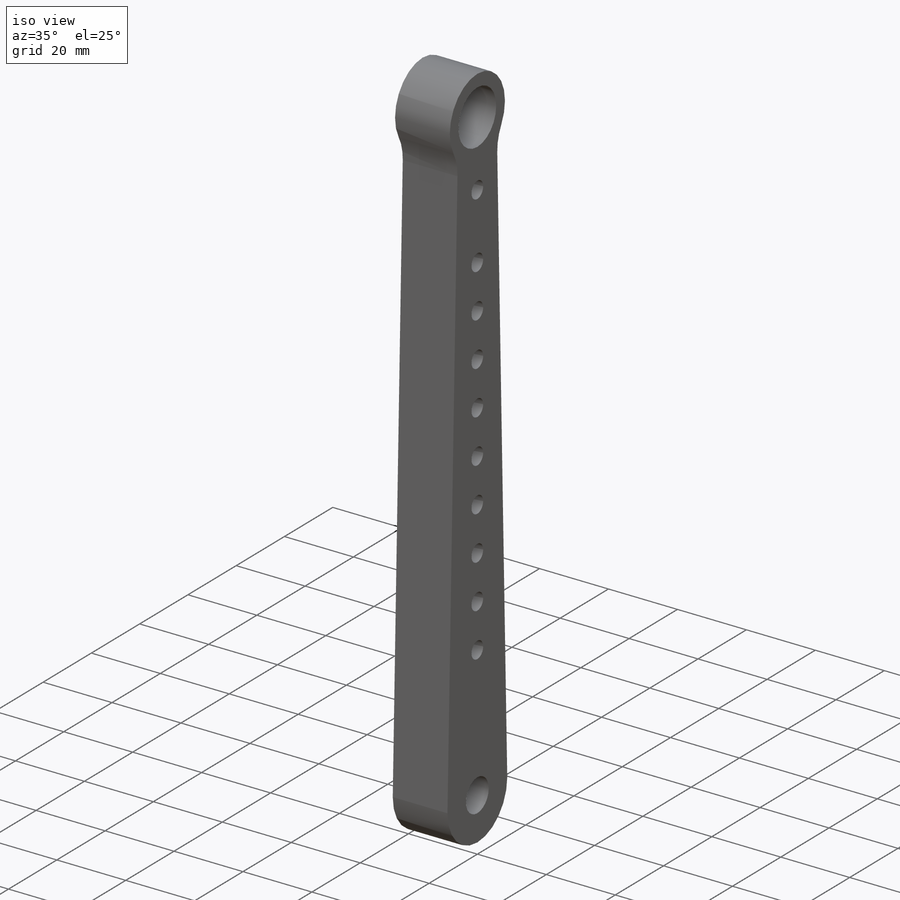
[diagram: iso view]
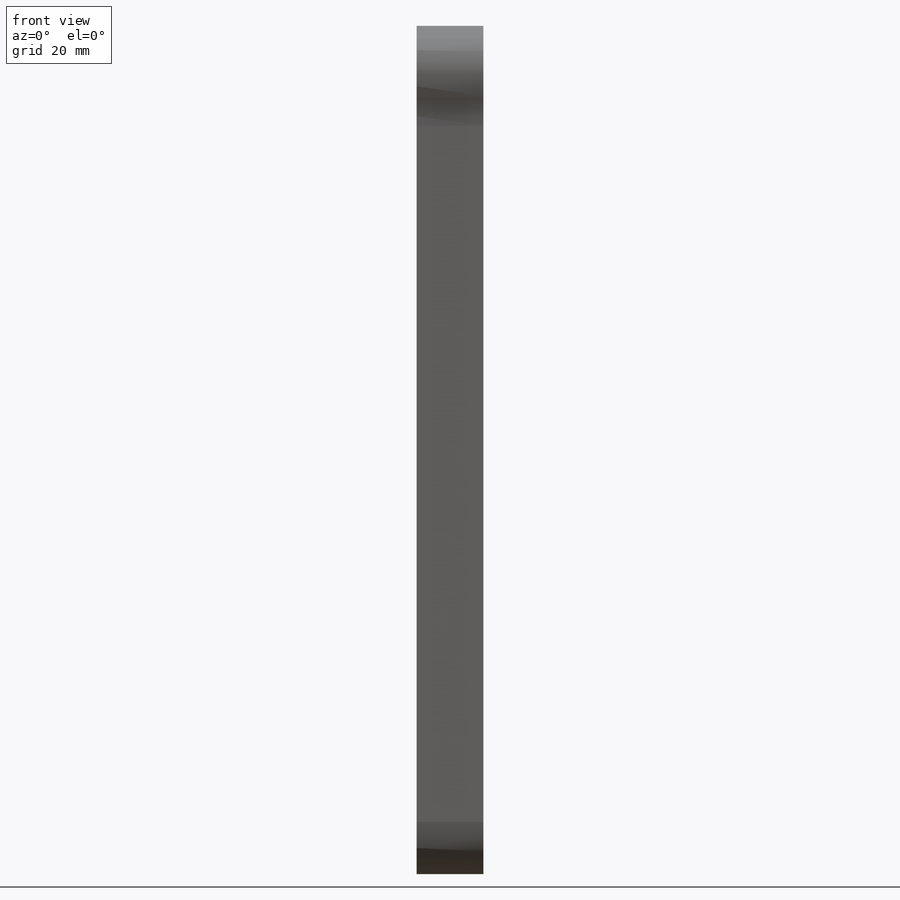
[diagram: front view]
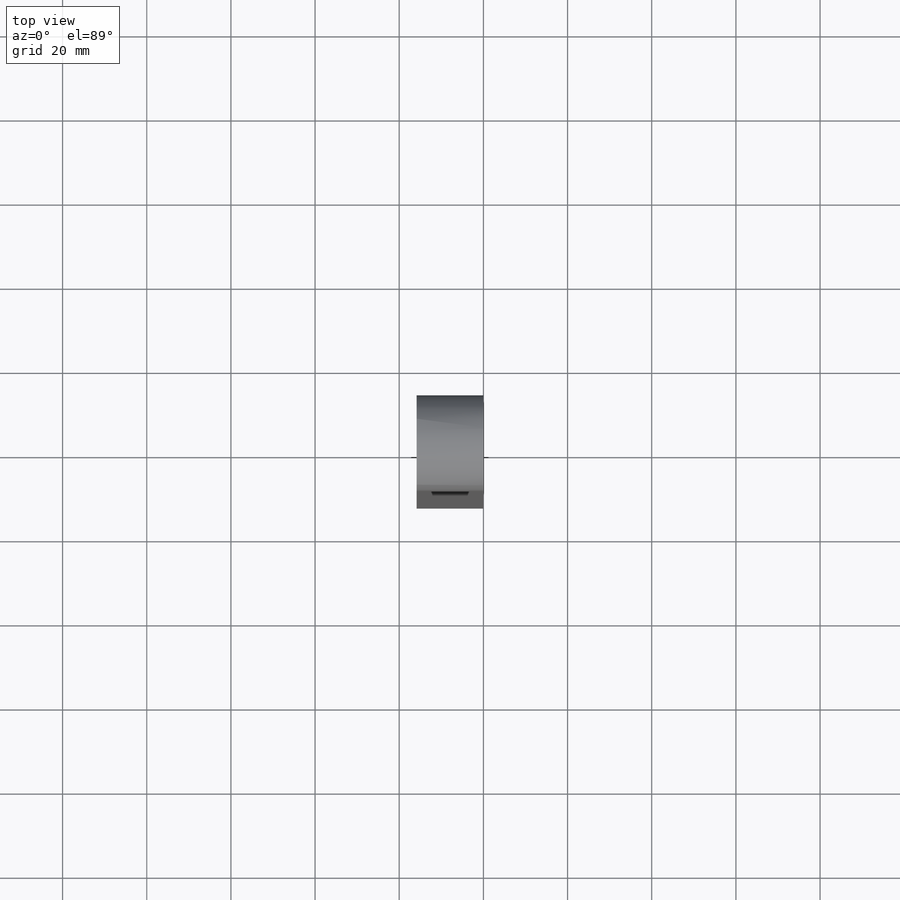
[diagram: top view]
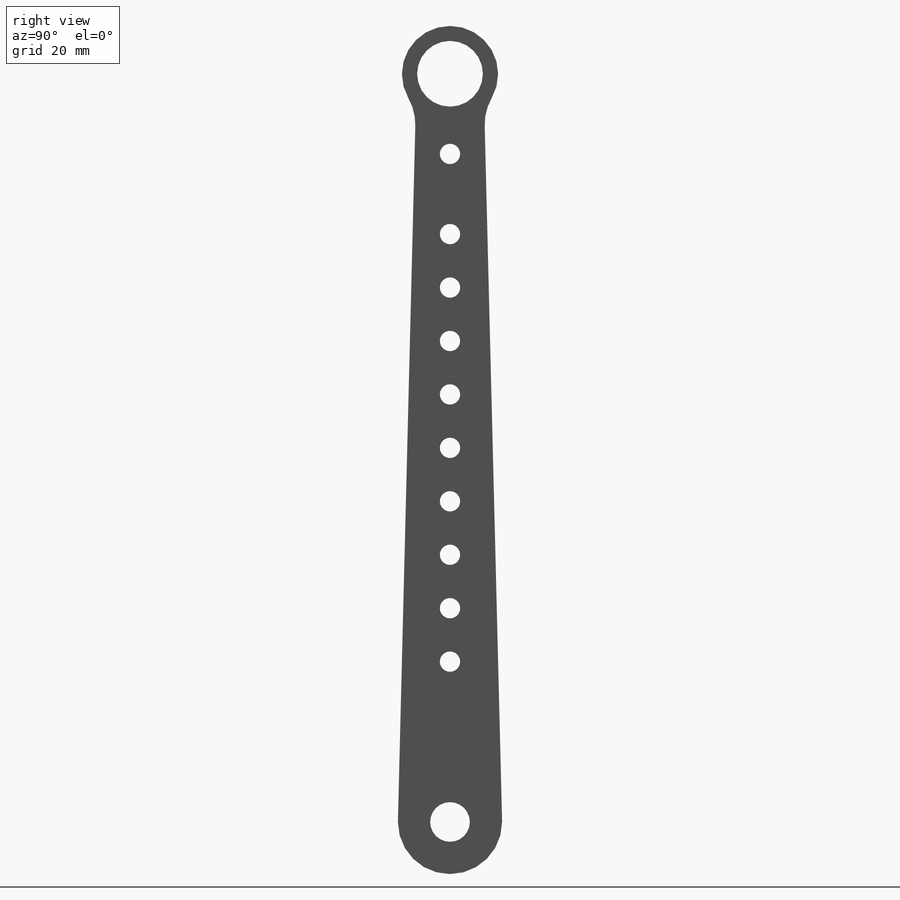
[diagram: right view]
SOLIDWORKS PART (.sldprt)
format: sldprt  version: not decoded by parser v0  size: 287,744 bytes
history: native  units: mm
features: sketch x8, cut_extrude x5, material x1, extrude x1, fillet x1 (+11 scaffold rows collapsed)
feature tree (27):
  scaffold x11  (default folders/planes/origin — collapsed)
  material  "6061-T6 (SS)"
  sketch  "Outline Front"  dims[D1=279.4mm D2=25.4mm D3=76.2mm D4=177.8mm D5=203.2mm]
  sketch  "Outline Side"  dims[D1=9.4234mm D2=15.875mm D3=4.826mm D16=3.175mm D4=63.5mm D5=177.8mm D6=50.8mm D7=76.2mm D8=88.9mm D9=101.6mm D10=114.3mm D11=127.0mm D12=139.7mm D13=158.75mm D14=165.1mm D15=38.1mm]
  sketch  "Sketch3"  dims[D5=22.86mm D1=190.5mm D2=25.4mm D3=12.7mm D4=15.875mm]
  extrude  "Vertical Bar"  Depth=15.875mm
  sketch  "Sketch5"
  cut_extrude  "Cut-Cable holder"  [1 undecoded]
  sketch  "Sketch6"
  cut_extrude  "Cut-Pivot hole"  [1 undecoded]
  sketch  "Sketch8"  dims[D1=25.4mm]
  cut_extrude  "Cut-Extrude8"  [1 undecoded]
  sketch  "Sketch9"  dims[c1.D3=6.35mm c1.D2=6.35mm c1.D1=38.1mm c2.D2=127.0mm c2.D3=~12.016367mm c2.D4=127.0mm c2.D1=109.22mm c3.D3=31.75mm]
  cut_extrude  "Slot Cut"  Depth=7.62mm
  sketch  "Sketch10"  dims[D1=15.621mm]
  cut_extrude  "Cut-Extrude9"  [1 undecoded]
  fillet  "Fillet1"  Radius=12.7mm
decode coverage: 9 of 15 modeling features carry decoded parameters
note: ~ marks probable driven/reference dimensions
note: 4 parameter values undecoded
summary: no parameter record found for 4 features
note: suppression state not decoded; provenance and decode notes live in map.json
